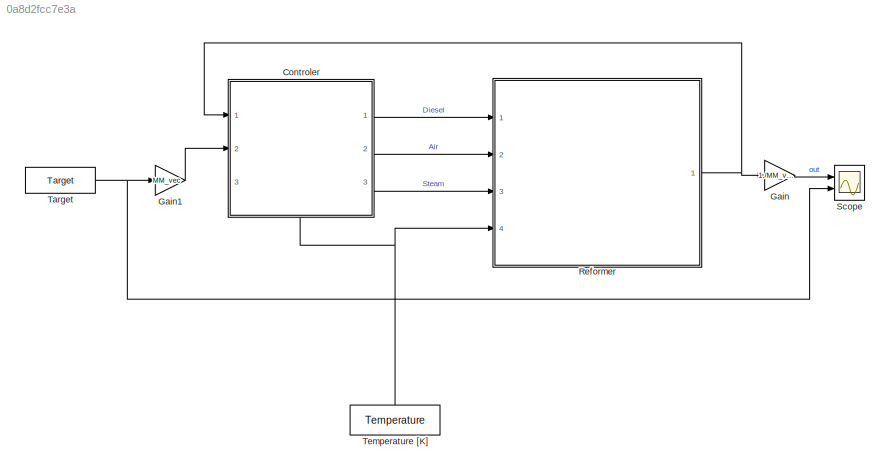
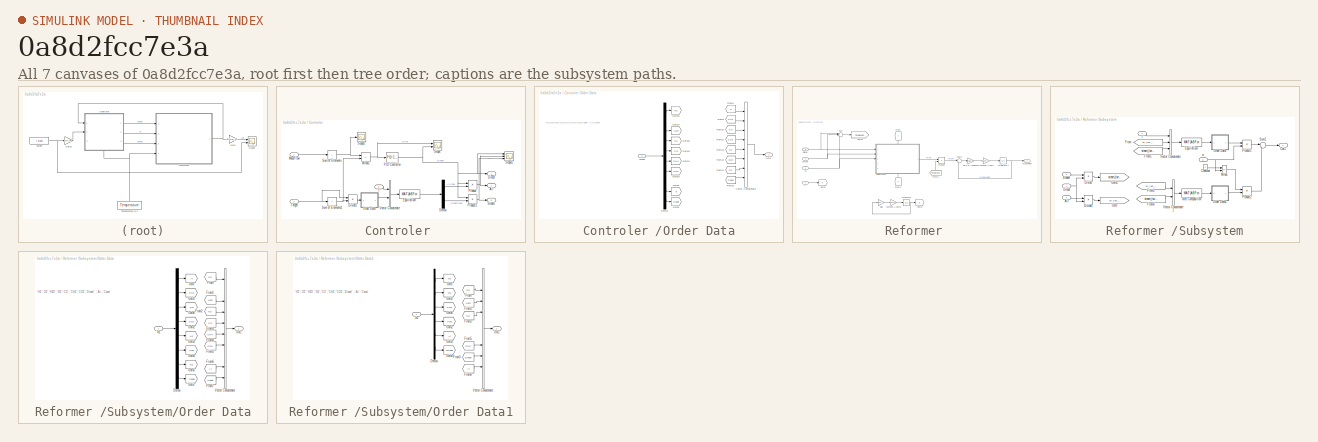
[diagram: thumbnail index - all 7 canvases of the model, root first then tree order]
MODEL slx_0a8d2fcc7e3a
KIND model
CONFIG AbsTol = auto
CONFIG EnableMultiTasking = off
CONFIG FixedStep = auto
CONFIG MaxStep = auto
CONFIG MinStep = auto
CONFIG RelTol = 1e-3
CONFIG SampleTimeConstraint = Unconstrained
CONFIG SolverName = VariableStepAuto
CONFIG StartTime = 0.0
CONFIG StopTime = 3
BLOCK [SubSystem] Controler 
  PortSchema = {"entries":[{"content":{"sides":[{"content":{"connectorIds":["In1","In2"]},"type":"ConnectorPlacement.EquallySpacedRectSide","uuid":"d0df8d63-6ccb-4e17-b5ac-849eda0159c4"},{"content":{"connectorIds":["Out1","Out2","Out3"],"side":"RIGHT"},"type":"ConnectorPlacement.EquallySpacedRectSide","uuid":"810d19ce-f80f-4df6-8135-9424920dd639"},{"content":{"connectorIds":[],"side":"TOP"},"type":"ConnectorPlac...<+409ch>
  Ports = [3, 3]
  RequestExecContextInheritance = off
BLOCK [Outport] Controler /Air
  Port = 2
BLOCK [Demux] Controler /Demux
  Outputs = 2
  Ports = [1, 2]
BLOCK [Outport] Controler /Diesel
BLOCK [Product] Controler /Divide1
  Inputs = */
  Ports = [2, 1]
BLOCK [MATLABFcn] Controler /Equilibrium
  MATLABFcn = backward_reformer_net
  Output1D = off
  OutputDimensions = 2
  OutputSignalType = real
  Ports = [1, 1]
BLOCK [Inport] Controler /MassFlow
BLOCK [Sum] Controler /Minus1
  IconShape = rectangular
  Inputs = -+
  Ports = [2, 1]
BLOCK [SubSystem] Controler /Order Data
  Ports = [1, 1]
  RequestExecContextInheritance = off
BLOCK [Demux] Controler /Order Data/Demux
  Outputs = 10
  Ports = [1, 10]
BLOCK [From] Controler /Order Data/From10
  GotoTag = CO
BLOCK [From] Controler /Order Data/From11
  GotoTag = CO2
BLOCK [From] Controler /Order Data/From12
  GotoTag = H2
BLOCK [From] Controler /Order Data/From13
  GotoTag = H2O
BLOCK [From] Controler /Order Data/From14
  GotoTag = N2
BLOCK [From] Controler /Order Data/From15
  GotoTag = Csoot
BLOCK [From] Controler /Order Data/From8
  GotoTag = Ar
BLOCK [From] Controler /Order Data/From9
  GotoTag = CH4
BLOCK [Goto] Controler /Order Data/Goto10
  GotoTag = CO2
BLOCK [Goto] Controler /Order Data/Goto11
  GotoTag = CH4
BLOCK [Goto] Controler /Order Data/Goto12
  GotoTag = CO
BLOCK [Goto] Controler /Order Data/Goto13
  GotoTag = N2
BLOCK [Goto] Controler /Order Data/Goto14
  GotoTag = H2O
BLOCK [Goto] Controler /Order Data/Goto15
  GotoTag = H2
BLOCK [Goto] Controler /Order Data/Goto8
  GotoTag = Csoot
BLOCK [Goto] Controler /Order Data/Goto9
  GotoTag = Ar
BLOCK [Outport] Controler /Order Data/Out1
BLOCK [Inport] Controler /Order Data/Target
BLOCK [Concatenate] Controler /Order Data/Vector Concatenate
  NumInputs = 8
  Ports = [8, 1]
BLOCK [Reference] Controler /PID Controller  REF=pid_lib/PID Controller
  Ports = [1, 1]
  SourceBlock = pid_lib/PID Controller
  SourceProductBaseCode = SL
  SourceType = PID 1dof
BLOCK [Product] Controler /Product
  Ports = [2, 1]
BLOCK [Product] Controler /Product1
  Ports = [2, 1]
BLOCK [Scope] Controler /Scope
  Floating = off
  NumInputPorts = 2
  Ports = [2]
  ScopeSpecificationString = Simulink.scopes.TimeScopeBlockCfg('CurrentConfiguration', extmgr.ConfigurationSet(extmgr.Configuration('Core','General UI',true),extmgr.Configuration('Core','Source UI',true),extmgr.Configuration('Sources','WiredSimulink',true,'DataLoggingVariableName','ScopeData2'),extmgr.Configuration('Visuals','Time Domain',true,'SerializedDisplays',{struct('MinYLimReal','-0.00002','MaxYLimReal','0.00022','YLab...<+1448ch>
BLOCK [Scope] Controler /Scope1
  Floating = off
  NumInputPorts = 3
  Ports = [3]
  ScopeSpecificationString = Simulink.scopes.TimeScopeBlockCfg('CurrentConfiguration', extmgr.ConfigurationSet(extmgr.Configuration('Core','General UI',true),extmgr.Configuration('Core','Source UI',true),extmgr.Configuration('Sources','WiredSimulink',true,'DataLoggingVariableName','ScopeData3'),extmgr.Configuration('Visuals','Time Domain',true,'SerializedDisplays',{struct('MinYLimReal','-0.00002','MaxYLimReal','0.0005','YLabe...<+1560ch>
BLOCK [Scope] Controler /Scope2
  Floating = off
  NumInputPorts = 1
  Ports = [1]
  ScopeSpecificationString = Simulink.scopes.TimeScopeBlockCfg('CurrentConfiguration', extmgr.ConfigurationSet(extmgr.Configuration('Core','General UI',true),extmgr.Configuration('Core','Source UI',true),extmgr.Configuration('Sources','WiredSimulink',true,'DataLoggingVariableName','ScopeData1'),extmgr.Configuration('Visuals','Time Domain',true,'SerializedDisplays',{struct('MinYLimReal','-0.00001','MaxYLimReal','0.0001','YLabe...<+1444ch>
BLOCK [Outport] Controler /Steam
  Port = 3
BLOCK [Sum] Controler /Sum of Elements
  IconShape = rectangular
  Inputs = +
  Ports = [1, 1]
BLOCK [Sum] Controler /Sum of Elements1
  IconShape = rectangular
  Inputs = +
  Ports = [1, 1]
BLOCK [Inport] Controler /T
  Port = 3
BLOCK [Inport] Controler /Target
  Port = 2
BLOCK [Concatenate] Controler /Vector Concatenate
  Ports = [2, 1]
BLOCK [Gain] Gain
  Gain = 1./MM_vec
BLOCK [Gain] Gain1
  Gain = MM_vec
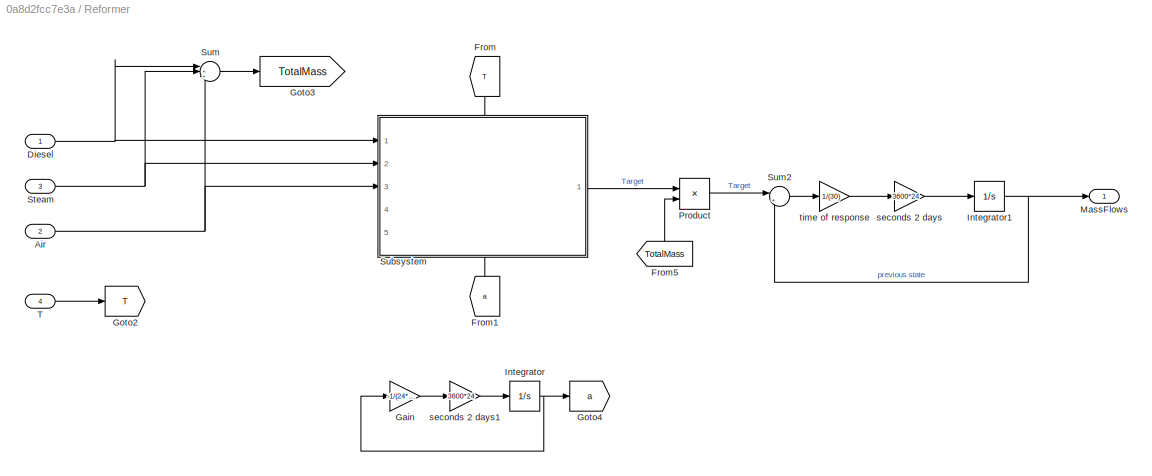
BLOCK [SubSystem] Reformer 
  Ports = [4, 1]
  RequestExecContextInheritance = off
BLOCK [Inport] Reformer /Air
  Port = 2
BLOCK [Inport] Reformer /Diesel
BLOCK [From] Reformer /From
  GotoTag = T
  NameLocation = left
BLOCK [From] Reformer /From1
  GotoTag = a
  NameLocation = right
BLOCK [From] Reformer /From5
  GotoTag = TotalMass
  NameLocation = right
BLOCK [Gain] Reformer /Gain
  Gain = -1/(24*30*24*3600)*0
BLOCK [Goto] Reformer /Goto2
  GotoTag = T
BLOCK [Goto] Reformer /Goto3
  GotoTag = TotalMass
BLOCK [Goto] Reformer /Goto4
  GotoTag = a
BLOCK [Integrator] Reformer /Integrator
  InitialCondition = 1
  Ports = [1, 1]
BLOCK [Integrator] Reformer /Integrator1
  InitialCondition = 1e-5
  Ports = [1, 1]
BLOCK [Outport] Reformer /MassFlows
BLOCK [Product] Reformer /Product
  Ports = [2, 1]
BLOCK [Inport] Reformer /Steam
  Port = 3
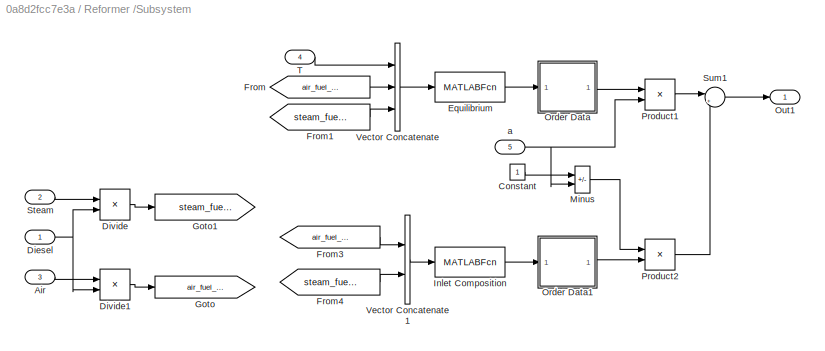
BLOCK [SubSystem] Reformer /Subsystem
  PortSchema = {"entries":[{"content":{"sides":[{"content":{"connectorIds":["In1","In2","In3"]},"type":"ConnectorPlacement.EquallySpacedRectSide","uuid":"0dada652-6957-4c3e-8e48-73ee360a3bab"},{"content":{"connectorIds":["Out1"],"side":"RIGHT"},"type":"ConnectorPlacement.EquallySpacedRectSide","uuid":"81208621-951c-43f9-b655-3502a16ce57a"},{"content":{"connectorIds":["In4"],"side":"TOP"},"type":"ConnectorPlaceme...<+406ch>
  Ports = [5, 1]
  RequestExecContextInheritance = off
BLOCK [Inport] Reformer /Subsystem/Air
  Port = 3
BLOCK [Constant] Reformer /Subsystem/Constant
BLOCK [Inport] Reformer /Subsystem/Diesel
BLOCK [Product] Reformer /Subsystem/Divide
  Inputs = */
  Ports = [2, 1]
BLOCK [Product] Reformer /Subsystem/Divide1
  Inputs = */
  Ports = [2, 1]
BLOCK [MATLABFcn] Reformer /Subsystem/Equilibrium
  MATLABFcn = forward_reformer_net
  Output1D = off
  OutputDimensions = 8
  OutputSignalType = real
  Ports = [1, 1]
BLOCK [From] Reformer /Subsystem/From
  GotoTag = air_fuel_ratio
BLOCK [From] Reformer /Subsystem/From1
  GotoTag = steam_fuel_ratio
BLOCK [From] Reformer /Subsystem/From3
  GotoTag = air_fuel_ratio
BLOCK [From] Reformer /Subsystem/From4
  GotoTag = steam_fuel_ratio
BLOCK [Goto] Reformer /Subsystem/Goto
  GotoTag = air_fuel_ratio
BLOCK [Goto] Reformer /Subsystem/Goto1
  GotoTag = steam_fuel_ratio
BLOCK [MATLABFcn] Reformer /Subsystem/Inlet Composition
  MATLABFcn = inlet_reformer_net
  Output1D = off
  OutputDimensions = 6
  OutputSignalType = real
  Ports = [1, 1]
BLOCK [Sum] Reformer /Subsystem/Minus
  IconShape = rectangular
  Inputs = +-
  Ports = [2, 1]
BLOCK [SubSystem] Reformer /Subsystem/Order Data
  Ports = [1, 1]
  RequestExecContextInheritance = off
BLOCK [Demux] Reformer /Subsystem/Order Data/Demux
  Outputs = 8
  Ports = [1, 8]
BLOCK [From] Reformer /Subsystem/Order Data/From
  GotoTag = H2
BLOCK [From] Reformer /Subsystem/Order Data/From1
  GotoTag = H2O
BLOCK [From] Reformer /Subsystem/Order Data/From2
  GotoTag = N2
BLOCK [From] Reformer /Subsystem/Order Data/From3
  GotoTag = CO
BLOCK [From] Reformer /Subsystem/Order Data/From4
  GotoTag = CH4
BLOCK [From] Reformer /Subsystem/Order Data/From5
  GotoTag = CO2
BLOCK [From] Reformer /Subsystem/Order Data/From6
  GotoTag = Ar
BLOCK [From] Reformer /Subsystem/Order Data/From7
  GotoTag = Csoot
BLOCK [Goto] Reformer /Subsystem/Order Data/Goto
  GotoTag = Ar
BLOCK [Goto] Reformer /Subsystem/Order Data/Goto1
  GotoTag = CH4
BLOCK [Goto] Reformer /Subsystem/Order Data/Goto2
  GotoTag = CO2
BLOCK [Goto] Reformer /Subsystem/Order Data/Goto3
  GotoTag = H2
BLOCK [Goto] Reformer /Subsystem/Order Data/Goto4
  GotoTag = H2O
BLOCK [Goto] Reformer /Subsystem/Order Data/Goto5
  GotoTag = N2
BLOCK [Goto] Reformer /Subsystem/Order Data/Goto6
  GotoTag = CO
BLOCK [Goto] Reformer /Subsystem/Order Data/Goto7
  GotoTag = Csoot
BLOCK [Inport] Reformer /Subsystem/Order Data/In1
BLOCK [Outport] Reformer /Subsystem/Order Data/Out1
BLOCK [Concatenate] Reformer /Subsystem/Order Data/Vector Concatenate
  NumInputs = 10
  Ports = [10, 1]
BLOCK [SubSystem] Reformer /Subsystem/Order Data1
  Ports = [1, 1]
  RequestExecContextInheritance = off
BLOCK [Demux] Reformer /Subsystem/Order Data1/Demux
  Outputs = 6
  Ports = [1, 6]
BLOCK [From] Reformer /Subsystem/Order Data1/From
  GotoTag = O2
BLOCK [From] Reformer /Subsystem/Order Data1/From1
  GotoTag = H2O
BLOCK [From] Reformer /Subsystem/Order Data1/From2
  GotoTag = N2
BLOCK [From] Reformer /Subsystem/Order Data1/From3
  GotoTag = Diesel
BLOCK [From] Reformer /Subsystem/Order Data1/From5
  GotoTag = CO2
BLOCK [From] Reformer /Subsystem/Order Data1/From6
  GotoTag = Ar
BLOCK [Goto] Reformer /Subsystem/Order Data1/Goto
  GotoTag = N2
BLOCK [Goto] Reformer /Subsystem/Order Data1/Goto1
  GotoTag = O2
BLOCK [Goto] Reformer /Subsystem/Order Data1/Goto2
  GotoTag = H2O
BLOCK [Goto] Reformer /Subsystem/Order Data1/Goto3
  GotoTag = Ar
BLOCK [Goto] Reformer /Subsystem/Order Data1/Goto4
  GotoTag = Diesel
BLOCK [Goto] Reformer /Subsystem/Order Data1/Goto6
  GotoTag = CO2
BLOCK [Inport] Reformer /Subsystem/Order Data1/In1
BLOCK [Outport] Reformer /Subsystem/Order Data1/Out1
BLOCK [Concatenate] Reformer /Subsystem/Order Data1/Vector Concatenate
  NumInputs = 10
  Ports = [10, 1]
BLOCK [Outport] Reformer /Subsystem/Out1
BLOCK [Product] Reformer /Subsystem/Product1
  Ports = [2, 1]
BLOCK [Product] Reformer /Subsystem/Product2
  Ports = [2, 1]
BLOCK [Inport] Reformer /Subsystem/Steam
  Port = 2
BLOCK [Sum] Reformer /Subsystem/Sum1
  Inputs = |++
  Ports = [2, 1]
BLOCK [Inport] Reformer /Subsystem/T
  Port = 4
BLOCK [Concatenate] Reformer /Subsystem/Vector Concatenate
  NumInputs = 3
  Ports = [3, 1]
BLOCK [Concatenate] Reformer /Subsystem/Vector Concatenate1
  Ports = [2, 1]
BLOCK [Inport] Reformer /Subsystem/a
  Port = 5
BLOCK [Sum] Reformer /Sum
  Inputs = |+++
  Ports = [3, 1]
BLOCK [Sum] Reformer /Sum2
  Inputs = |+-
  Ports = [2, 1]
BLOCK [Inport] Reformer /T
  Port = 4
BLOCK [Gain] Reformer /seconds 2 days
  Gain = 3600*24
BLOCK [Gain] Reformer /seconds 2 days1
  Gain = 3600*24
BLOCK [Gain] Reformer /time of response
  Gain = 1/(30)
BLOCK [Scope] Scope
  Floating = off
  NumInputPorts = 2
  Ports = [2]
  ScopeSpecificationString = Simulink.scopes.TimeScopeBlockCfg('CurrentConfiguration', extmgr.ConfigurationSet(extmgr.Configuration('Core','General UI',true),extmgr.Configuration('Core','Source UI',true),extmgr.Configuration('Sources','WiredSimulink',true),extmgr.Configuration('Visuals','Time Domain',true,'SerializedDisplays',{struct('MinYLimReal','-0.00265','MaxYLimReal','0.02386','YLabelReal','','MinYLimMag','0.00000','MaxY...<+2732ch>
BLOCK [Constant] Target
  Value = Target
BLOCK [Constant] Temperature [K]
  NameLocation = right
  Value = Temperature
ANNOTATION Controler /Order Data: 'H2' , 'O2' , 'H2O' , 'N2' , 'CO' , 'CH4' , 'CO2' , 'Diesel' ,'Ar','Csoot'
ANNOTATION Reformer /Subsystem/Order Data: 'H2' , 'O2' , 'H2O' , 'N2' , 'CO' , 'CH4' , 'CO2' , 'Diesel' ,'Ar','Csoot'
ANNOTATION Reformer /Subsystem/Order Data1: 'H2' , 'O2' , 'H2O' , 'N2' , 'CO' , 'CH4' , 'CO2' , 'Diesel' ,'Ar','Csoot'
LINE Controler /Demux:1 -> Controler /Product:2
LINE Controler /Demux:2 -> Controler /Product1:2
LINE Controler /Divide1:1 -> Controler /Order Data:1
LINE Controler /Equilibrium:1 -> Controler /Demux:1
LINE Controler /MassFlow:1 -> Controler /Sum of Elements:1
NET Controler /Minus1:1 -> Controler /PID Controller:1, Controler /Scope:1
LINE Controler /Order Data/Demux:1 -> Controler /Order Data/Goto15:1
LINE Controler /Order Data/Demux:10 -> Controler /Order Data/Goto8:1
LINE Controler /Order Data/Demux:3 -> Controler /Order Data/Goto14:1
LINE Controler /Order Data/Demux:4 -> Controler /Order Data/Goto13:1
LINE Controler /Order Data/Demux:5 -> Controler /Order Data/Goto12:1
LINE Controler /Order Data/Demux:6 -> Controler /Order Data/Goto11:1
LINE Controler /Order Data/Demux:7 -> Controler /Order Data/Goto10:1
LINE Controler /Order Data/Demux:9 -> Controler /Order Data/Goto9:1
LINE Controler /Order Data/From10:1 -> Controler /Order Data/Vector Concatenate:3
LINE Controler /Order Data/From11:1 -> Controler /Order Data/Vector Concatenate:4
LINE Controler /Order Data/From12:1 -> Controler /Order Data/Vector Concatenate:5
LINE Controler /Order Data/From13:1 -> Controler /Order Data/Vector Concatenate:6
LINE Controler /Order Data/From14:1 -> Controler /Order Data/Vector Concatenate:7
LINE Controler /Order Data/From15:1 -> Controler /Order Data/Vector Concatenate:8
LINE Controler /Order Data/From8:1 -> Controler /Order Data/Vector Concatenate:1
LINE Controler /Order Data/From9:1 -> Controler /Order Data/Vector Concatenate:2
LINE Controler /Order Data/Target:1 -> Controler /Order Data/Demux:1
LINE Controler /Order Data/Vector Concatenate:1 -> Controler /Order Data/Out1:1
LINE Controler /Order Data:1 -> Controler /Vector Concatenate:2
NET Controler /PID Controller:1 -> Controler /Diesel:1, Controler /Product1:1, Controler /Product:1, Controler /Scope1:1, Controler /Scope:2
NET Controler /Product1:1 -> Controler /Scope1:3, Controler /Steam:1
NET Controler /Product:1 -> Controler /Air:1, Controler /Scope1:2
NET Controler /Sum of Elements1:1 -> Controler /Divide1:2, Controler /Minus1:2
NET Controler /Sum of Elements:1 -> Controler /Minus1:1, Controler /Scope2:1
LINE Controler /T:1 -> Controler /Vector Concatenate:1
NET Controler /Target:1 -> Controler /Divide1:1, Controler /Sum of Elements1:1
LINE Controler /Vector Concatenate:1 -> Controler /Equilibrium:1
LINE Controler :1 -> Reformer :1
LINE Controler :2 -> Reformer :2
LINE Controler :3 -> Reformer :3
LINE Gain1:1 -> Controler :2
LINE Gain:1 -> Scope:1
NET Reformer /Air:1 -> Reformer /Subsystem:3, Reformer /Sum:3
NET Reformer /Diesel:1 -> Reformer /Subsystem:1, Reformer /Sum:1
LINE Reformer /From1:1 -> Reformer /Subsystem:5
LINE Reformer /From5:1 -> Reformer /Product:2
LINE Reformer /From:1 -> Reformer /Subsystem:4
LINE Reformer /Gain:1 -> Reformer /seconds 2 days1:1
NET Reformer /Integrator1:1 -> Reformer /MassFlows:1, Reformer /Sum2:2
NET Reformer /Integrator:1 -> Reformer /Gain:1, Reformer /Goto4:1
LINE Reformer /Product:1 -> Reformer /Sum2:1
NET Reformer /Steam:1 -> Reformer /Subsystem:2, Reformer /Sum:2
LINE Reformer /Subsystem/Air:1 -> Reformer /Subsystem/Divide1:1
LINE Reformer /Subsystem/Constant:1 -> Reformer /Subsystem/Minus:1
NET Reformer /Subsystem/Diesel:1 -> Reformer /Subsystem/Divide1:2, Reformer /Subsystem/Divide:2
LINE Reformer /Subsystem/Divide1:1 -> Reformer /Subsystem/Goto:1
LINE Reformer /Subsystem/Divide:1 -> Reformer /Subsystem/Goto1:1
LINE Reformer /Subsystem/Equilibrium:1 -> Reformer /Subsystem/Order Data:1
LINE Reformer /Subsystem/From1:1 -> Reformer /Subsystem/Vector Concatenate:3
LINE Reformer /Subsystem/From3:1 -> Reformer /Subsystem/Vector Concatenate1:1
LINE Reformer /Subsystem/From4:1 -> Reformer /Subsystem/Vector Concatenate1:2
LINE Reformer /Subsystem/From:1 -> Reformer /Subsystem/Vector Concatenate:2
LINE Reformer /Subsystem/Inlet Composition:1 -> Reformer /Subsystem/Order Data1:1
LINE Reformer /Subsystem/Minus:1 -> Reformer /Subsystem/Product2:1
LINE Reformer /Subsystem/Order Data/Demux:1 -> Reformer /Subsystem/Order Data/Goto:1
LINE Reformer /Subsystem/Order Data/Demux:2 -> Reformer /Subsystem/Order Data/Goto1:1
LINE Reformer /Subsystem/Order Data/Demux:3 -> Reformer /Subsystem/Order Data/Goto6:1
LINE Reformer /Subsystem/Order Data/Demux:4 -> Reformer /Subsystem/Order Data/Goto2:1
LINE Reformer /Subsystem/Order Data/Demux:5 -> Reformer /Subsystem/Order Data/Goto3:1
LINE Reformer /Subsystem/Order Data/Demux:6 -> Reformer /Subsystem/Order Data/Goto4:1
LINE Reformer /Subsystem/Order Data/Demux:7 -> Reformer /Subsystem/Order Data/Goto5:1
LINE Reformer /Subsystem/Order Data/Demux:8 -> Reformer /Subsystem/Order Data/Goto7:1
LINE Reformer /Subsystem/Order Data/From1:1 -> Reformer /Subsystem/Order Data/Vector Concatenate:3
LINE Reformer /Subsystem/Order Data/From2:1 -> Reformer /Subsystem/Order Data/Vector Concatenate:4
LINE Reformer /Subsystem/Order Data/From3:1 -> Reformer /Subsystem/Order Data/Vector Concatenate:5
LINE Reformer /Subsystem/Order Data/From4:1 -> Reformer /Subsystem/Order Data/Vector Concatenate:6
LINE Reformer /Subsystem/Order Data/From5:1 -> Reformer /Subsystem/Order Data/Vector Concatenate:7
LINE Reformer /Subsystem/Order Data/From6:1 -> Reformer /Subsystem/Order Data/Vector Concatenate:9
LINE Reformer /Subsystem/Order Data/From7:1 -> Reformer /Subsystem/Order Data/Vector Concatenate:10
LINE Reformer /Subsystem/Order Data/From:1 -> Reformer /Subsystem/Order Data/Vector Concatenate:1
LINE Reformer /Subsystem/Order Data/In1:1 -> Reformer /Subsystem/Order Data/Demux:1
LINE Reformer /Subsystem/Order Data/Vector Concatenate:1 -> Reformer /Subsystem/Order Data/Out1:1
LINE Reformer /Subsystem/Order Data1/Demux:1 -> Reformer /Subsystem/Order Data1/Goto:1
LINE Reformer /Subsystem/Order Data1/Demux:2 -> Reformer /Subsystem/Order Data1/Goto1:1
LINE Reformer /Subsystem/Order Data1/Demux:3 -> Reformer /Subsystem/Order Data1/Goto6:1
LINE Reformer /Subsystem/Order Data1/Demux:4 -> Reformer /Subsystem/Order Data1/Goto2:1
LINE Reformer /Subsystem/Order Data1/Demux:5 -> Reformer /Subsystem/Order Data1/Goto3:1
LINE Reformer /Subsystem/Order Data1/Demux:6 -> Reformer /Subsystem/Order Data1/Goto4:1
LINE Reformer /Subsystem/Order Data1/From1:1 -> Reformer /Subsystem/Order Data1/Vector Concatenate:3
LINE Reformer /Subsystem/Order Data1/From2:1 -> Reformer /Subsystem/Order Data1/Vector Concatenate:4
LINE Reformer /Subsystem/Order Data1/From3:1 -> Reformer /Subsystem/Order Data1/Vector Concatenate:8
LINE Reformer /Subsystem/Order Data1/From5:1 -> Reformer /Subsystem/Order Data1/Vector Concatenate:7
LINE Reformer /Subsystem/Order Data1/From6:1 -> Reformer /Subsystem/Order Data1/Vector Concatenate:9
LINE Reformer /Subsystem/Order Data1/From:1 -> Reformer /Subsystem/Order Data1/Vector Concatenate:2
LINE Reformer /Subsystem/Order Data1/In1:1 -> Reformer /Subsystem/Order Data1/Demux:1
LINE Reformer /Subsystem/Order Data1/Vector Concatenate:1 -> Reformer /Subsystem/Order Data1/Out1:1
LINE Reformer /Subsystem/Order Data1:1 -> Reformer /Subsystem/Product2:2
LINE Reformer /Subsystem/Order Data:1 -> Reformer /Subsystem/Product1:1
LINE Reformer /Subsystem/Product1:1 -> Reformer /Subsystem/Sum1:1
LINE Reformer /Subsystem/Product2:1 -> Reformer /Subsystem/Sum1:2
LINE Reformer /Subsystem/Steam:1 -> Reformer /Subsystem/Divide:1
LINE Reformer /Subsystem/Sum1:1 -> Reformer /Subsystem/Out1:1
LINE Reformer /Subsystem/T:1 -> Reformer /Subsystem/Vector Concatenate:1
LINE Reformer /Subsystem/Vector Concatenate1:1 -> Reformer /Subsystem/Inlet Composition:1
LINE Reformer /Subsystem/Vector Concatenate:1 -> Reformer /Subsystem/Equilibrium:1
NET Reformer /Subsystem/a:1 -> Reformer /Subsystem/Minus:2, Reformer /Subsystem/Product1:2
LINE Reformer /Subsystem:1 -> Reformer /Product:1
LINE Reformer /Sum2:1 -> Reformer /time of response:1
LINE Reformer /Sum:1 -> Reformer /Goto3:1
LINE Reformer /T:1 -> Reformer /Goto2:1
LINE Reformer /seconds 2 days1:1 -> Reformer /Integrator:1
LINE Reformer /seconds 2 days:1 -> Reformer /Integrator1:1
LINE Reformer /time of response:1 -> Reformer /seconds 2 days:1
NET Reformer :1 -> Controler :1, Gain:1
NET Target:1 -> Gain1:1, Scope:2
NET Temperature [K]:1 -> Controler :3, Reformer :4
note: NET lines group one-source signal fan-out (src -> all destinations, sorted); 1:1 wires keep LINE
